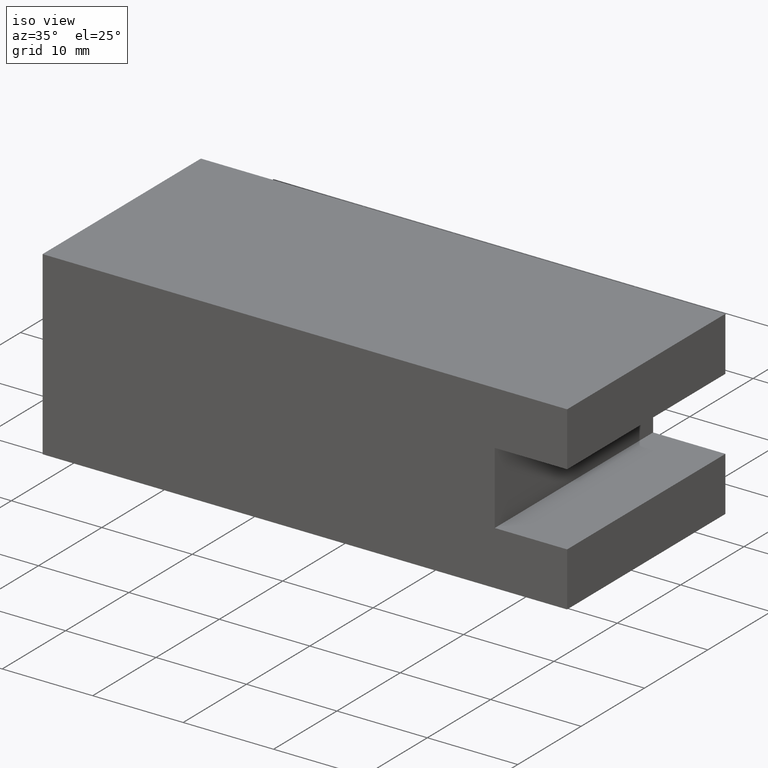
[diagram: clean part render]
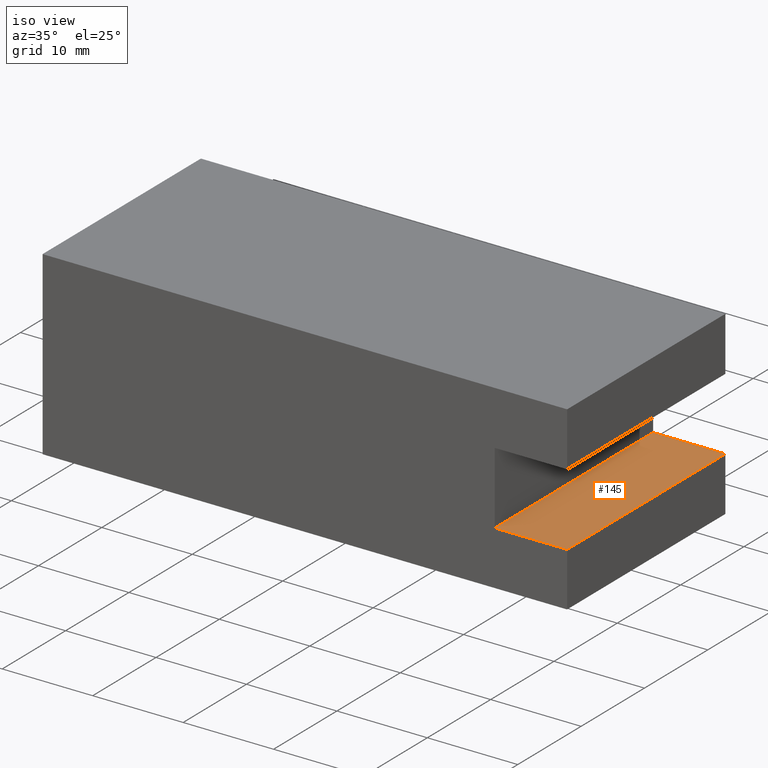
[diagram: same view with one face highlighted and labeled with its STEP entity id]
A machine part, iso view. The second image highlights one B-rep face of the part: STEP entity #145.
In plain terms, the highlighted planar face has unit normal (0, 0, -1).
Its self-contained STEP definition (entity closure, byte-faithful):
#49=CARTESIAN_POINT('',(37.825283991875160,-11.961124341222462,5.999999999999998));
#50=VERTEX_POINT('',#49);
#59=CARTESIAN_POINT('',(37.825283991875160,13.038875658777529,5.999999999999998));
#60=VERTEX_POINT('',#59);
#61=CARTESIAN_POINT('',(37.825283991875160,13.038875658777529,5.999999999999998));
#62=DIRECTION('',(0.0,-1.0,0.0));
#63=VECTOR('',#62,24.999999999999993);
#64=LINE('',#61,#63);
#65=EDGE_CURVE('',#60,#50,#64,.T.);
#115=CARTESIAN_POINT('',(45.825283991875160,13.038875658777529,5.999999999999997));
#116=DIRECTION('',(0.0,0.0,-1.0));
#117=DIRECTION('',(-1.0,0.0,0.0));
#118=AXIS2_PLACEMENT_3D('',#115,#116,#117);
#119=PLANE('',#118);
#120=CARTESIAN_POINT('',(45.825283991875160,-11.961124341222462,5.999999999999997));
#121=VERTEX_POINT('',#120);
#122=CARTESIAN_POINT('',(45.825283991875160,-11.961124341222462,5.999999999999997));
#123=DIRECTION('',(-1.0,0.0,0.0));
#124=VECTOR('',#123,8.0);
#125=LINE('',#122,#124);
#126=EDGE_CURVE('',#121,#50,#125,.T.);
#127=ORIENTED_EDGE('',*,*,#126,.F.);
#128=CARTESIAN_POINT('',(45.825283991875160,13.038875658777529,5.999999999999997));
#129=VERTEX_POINT('',#128);
#130=CARTESIAN_POINT('',(45.825283991875160,13.038875658777529,5.999999999999997));
#131=DIRECTION('',(0.0,-1.0,0.0));
#132=VECTOR('',#131,24.999999999999993);
#133=LINE('',#130,#132);
#134=EDGE_CURVE('',#129,#121,#133,.T.);
#135=ORIENTED_EDGE('',*,*,#134,.F.);
#136=CARTESIAN_POINT('',(37.825283991875160,13.038875658777529,5.999999999999998));
#137=DIRECTION('',(1.0,0.0,0.0));
#138=VECTOR('',#137,8.0);
#139=LINE('',#136,#138);
#140=EDGE_CURVE('',#60,#129,#139,.T.);
#141=ORIENTED_EDGE('',*,*,#140,.F.);
#142=ORIENTED_EDGE('',*,*,#65,.T.);
#143=EDGE_LOOP('',(#127,#135,#141,#142));
#144=FACE_OUTER_BOUND('',#143,.T.);
#145=ADVANCED_FACE('',(#144),#119,.F.);